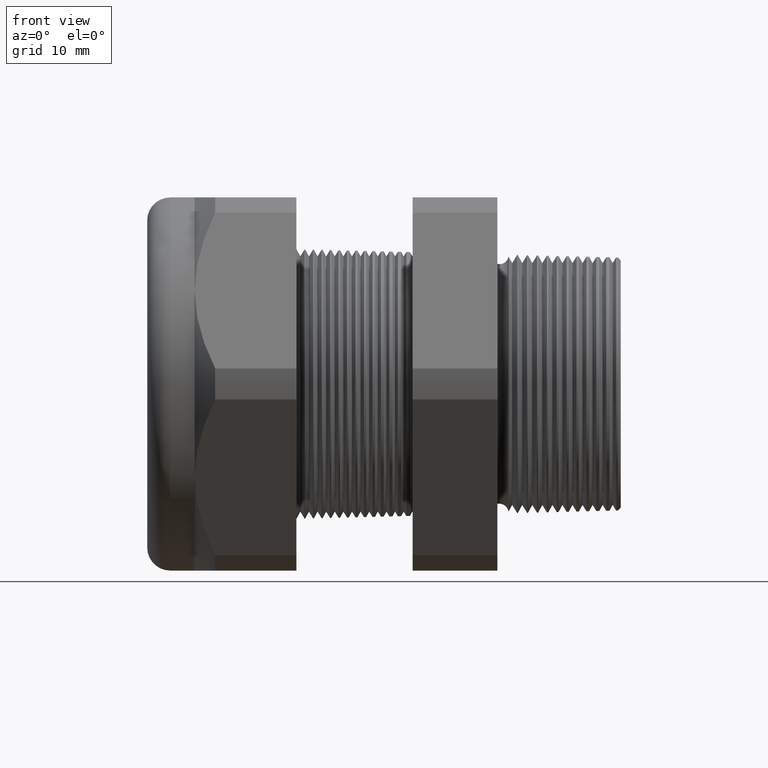
[diagram: clean part render]
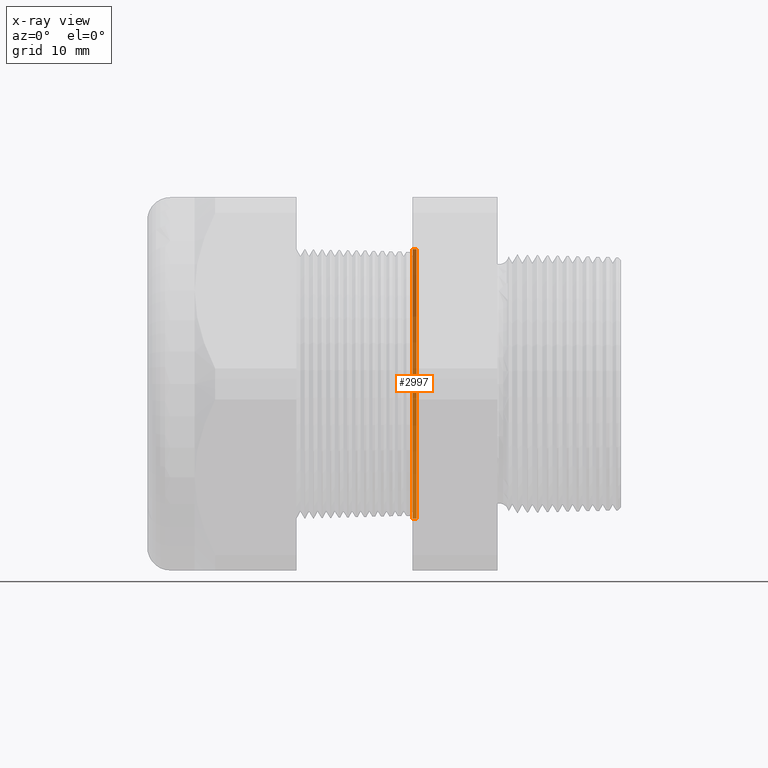
[diagram: x-ray — body ghosted, one internal face saturated and labeled with its STEP entity id]
A machine part, front view, then the same camera in x-ray: the body is ghosted and one INTERNAL B-rep face — a face not visible from any outside direction — is saturated and labeled: STEP entity #2997.
In plain terms, the highlighted conical surface has half-angle 1.5 deg.
Its self-contained STEP definition (entity closure, byte-faithful):
#167 = DIRECTION ( 'NONE',  ( 0.0000000000000000000, 0.0000000000000000000, 1.000000000000000000 ) ) ;
#168 = DIRECTION ( 'NONE',  ( -1.000000000000000000, 0.0000000000000000000, 0.0000000000000000000 ) ) ;
#169 = CARTESIAN_POINT ( 'NONE',  ( -0.6052755905511809600, 0.0000000000000000000, 0.0000000000000000000 ) ) ;
#170 = AXIS2_PLACEMENT_3D ( 'NONE', #169, #168, #167 ) ;
#171 = CIRCLE ( 'NONE', #170, 0.4696061802346682700 ) ;
#673 = DIRECTION ( 'NONE',  ( 0.0000000000000000000, 0.0000000000000000000, 1.000000000000000000 ) ) ;
#674 = DIRECTION ( 'NONE',  ( -1.000000000000000000, 0.0000000000000000000, 0.0000000000000000000 ) ) ;
#675 = AXIS2_PLACEMENT_3D ( 'NONE', #682, #674, #673 ) ;
#677 = CONICAL_SURFACE ( 'NONE', #675, 0.4692443365923945100, 0.02617993877990797800 ) ;
#678 = FACE_OUTER_BOUND ( 'NONE', #2998, .T. ) ;
#682 = CARTESIAN_POINT ( 'NONE',  ( -0.5914573393463203900, 0.0000000000000000000, 0.0000000000000000000 ) ) ;
#2143 = VERTEX_POINT ( 'NONE', #4816 ) ;
#2145 = VERTEX_POINT ( 'NONE', #4877 ) ;
#2147 = EDGE_CURVE ( 'NONE', #2145, #2148, #4876, .T. ) ;
#2148 = VERTEX_POINT ( 'NONE', #4872 ) ;
#2151 = VERTEX_POINT ( 'NONE', #4866 ) ;
#2153 = EDGE_CURVE ( 'NONE', #2143, #2151, #4865, .T. ) ;
#2163 = EDGE_CURVE ( 'NONE', #2145, #2143, #4909, .T. ) ;
#2608 = EDGE_CURVE ( 'NONE', #2151, #2148, #171, .T. ) ;
#2997 = ADVANCED_FACE ( 'NONE', ( #678 ), #677, .F. ) ;
#2998 = EDGE_LOOP ( 'NONE', ( #2999, #3000, #3001, #3002 ) ) ;
#2999 = ORIENTED_EDGE ( 'NONE', *, *, #2147, .F. ) ;
#3000 = ORIENTED_EDGE ( 'NONE', *, *, #2163, .T. ) ;
#3001 = ORIENTED_EDGE ( 'NONE', *, *, #2153, .T. ) ;
#3002 = ORIENTED_EDGE ( 'NONE', *, *, #2608, .T. ) ;
#4816 = CARTESIAN_POINT ( 'NONE',  ( -0.5914573393463203900, 5.746585748258992000E-017, 0.4692443365923945100 ) ) ;
#4862 = DIRECTION ( 'NONE',  ( -0.9996573249755573700, 0.0000000000000000000, 0.02617694830786618600 ) ) ;
#4863 = VECTOR ( 'NONE', #4862, 39.37007874015748100 ) ;
#4864 = CARTESIAN_POINT ( 'NONE',  ( -0.5914573393463203900, 0.0000000000000000000, 0.4692443365923945100 ) ) ;
#4865 = LINE ( 'NONE', #4864, #4863 ) ;
#4866 = CARTESIAN_POINT ( 'NONE',  ( -0.6052755905511809600, 0.0000000000000000000, 0.4696061802346682100 ) ) ;
#4872 = CARTESIAN_POINT ( 'NONE',  ( -0.6052755905511809600, 5.751017054842014700E-017, -0.4696061802346682100 ) ) ;
#4873 = DIRECTION ( 'NONE',  ( -0.9996573249755573700, 3.205751595667405400E-018, -0.02617694830786618600 ) ) ;
#4874 = VECTOR ( 'NONE', #4873, 39.37007874015748100 ) ;
#4875 = CARTESIAN_POINT ( 'NONE',  ( -0.5914573393463203900, 5.746585748258992000E-017, -0.4692443365923945100 ) ) ;
#4876 = LINE ( 'NONE', #4875, #4874 ) ;
#4877 = CARTESIAN_POINT ( 'NONE',  ( -0.5914573393463203900, 0.0000000000000000000, -0.4692443365923945100 ) ) ;
#4903 = DIRECTION ( 'NONE',  ( 0.0000000000000000000, 0.0000000000000000000, -1.000000000000000000 ) ) ;
#4904 = DIRECTION ( 'NONE',  ( 1.000000000000000000, 0.0000000000000000000, 0.0000000000000000000 ) ) ;
#4907 = CARTESIAN_POINT ( 'NONE',  ( -0.5914573393463203900, 0.0000000000000000000, 0.0000000000000000000 ) ) ;
#4908 = AXIS2_PLACEMENT_3D ( 'NONE', #4907, #4904, #4903 ) ;
#4909 = CIRCLE ( 'NONE', #4908, 0.4692443365923945100 ) ;